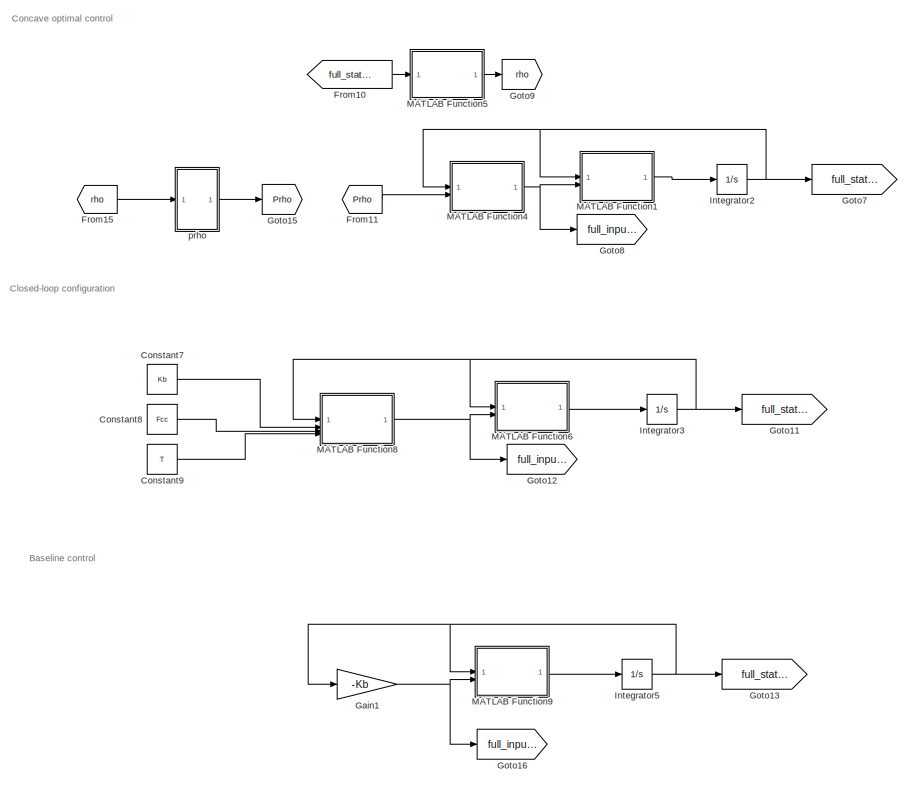
[diagram: root canvas - part 1/4, central region]
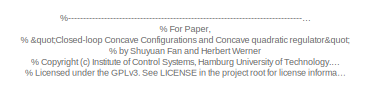
[diagram: root canvas - part 2/4, top left region]
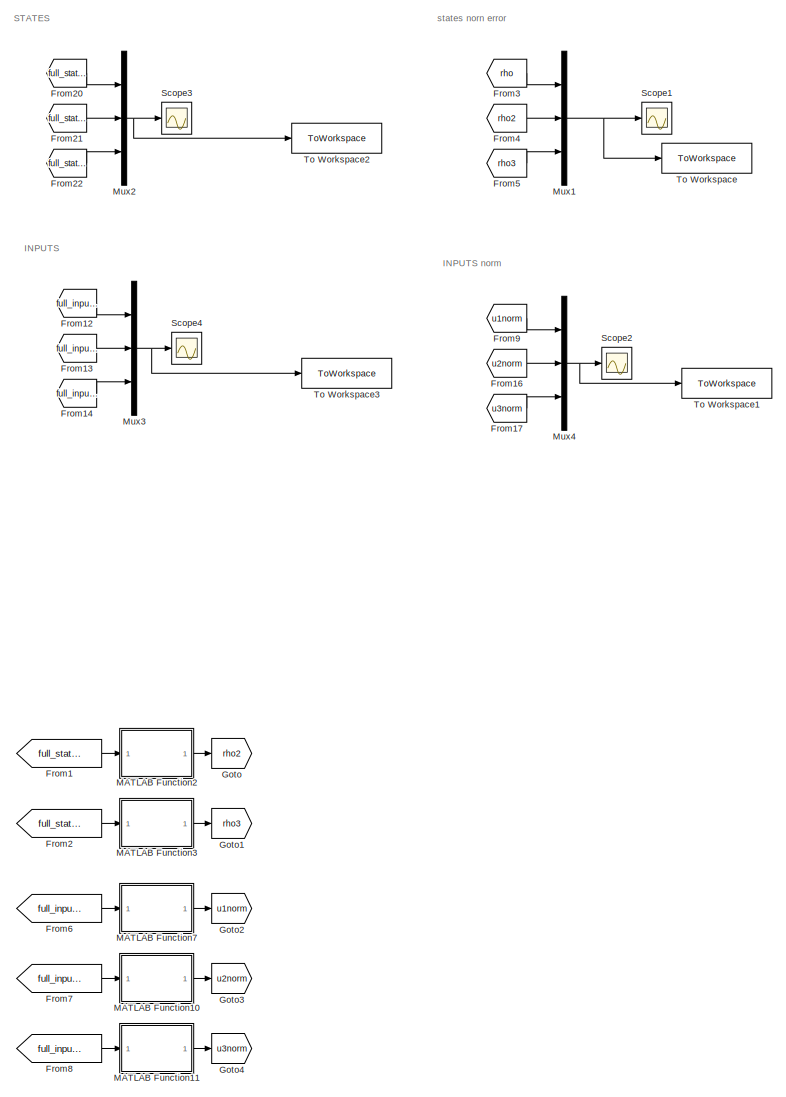
[diagram: root canvas - part 3/4, right side, full height]
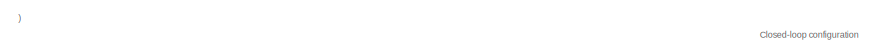
[diagram: root canvas - part 4/4, top left region]
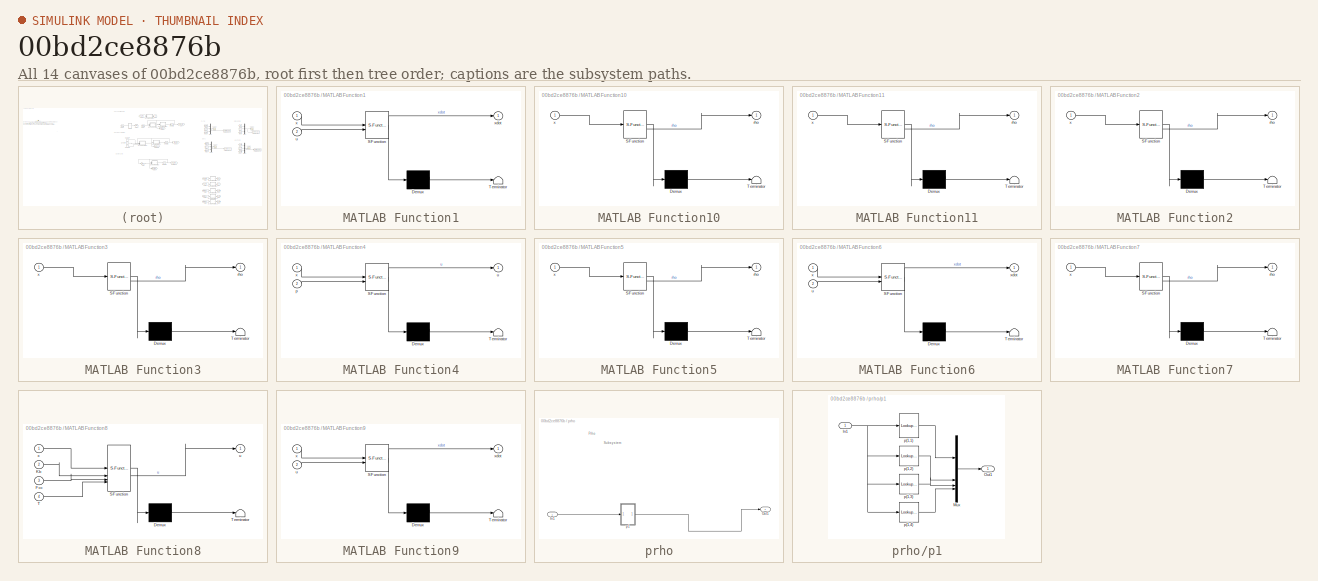
[diagram: thumbnail index - all 14 canvases of the model, root first then tree order]
MODEL slx_00bd2ce8876b
KIND model
CONFIG AbsTol = auto
CONFIG EnableMultiTasking = on
CONFIG FixedStep = 1e-4
CONFIG MaxStep = auto
CONFIG MinStep = auto
CONFIG RelTol = 1e-3
CONFIG SampleTimeConstraint = Unconstrained
CONFIG SolverName = FixedStepAuto
CONFIG StartTime = 0.0
CONFIG StopTime = 8
BLOCK [Constant] Constant7
  Value = Kb
BLOCK [Constant] Constant8
  Value = Fcc
BLOCK [Constant] Constant9
  Value = T
BLOCK [From] From1
  GotoTag = full_state_2
BLOCK [From] From10
  GotoTag = full_state_1
BLOCK [From] From11
  GotoTag = Prho
BLOCK [From] From12
  GotoTag = full_input_1
BLOCK [From] From13
  GotoTag = full_input_2
BLOCK [From] From14
  GotoTag = full_input_3
BLOCK [From] From15
  GotoTag = rho
BLOCK [From] From16
  GotoTag = u2norm
BLOCK [From] From17
  GotoTag = u3norm
BLOCK [From] From2
  GotoTag = full_state_3
BLOCK [From] From20
  GotoTag = full_state_1
BLOCK [From] From21
  GotoTag = full_state_2
BLOCK [From] From22
  GotoTag = full_state_3
BLOCK [From] From3
  GotoTag = rho
BLOCK [From] From4
  GotoTag = rho2
BLOCK [From] From5
  GotoTag = rho3
BLOCK [From] From6
  GotoTag = full_input_1
BLOCK [From] From7
  GotoTag = full_input_2
BLOCK [From] From8
  GotoTag = full_input_3
BLOCK [From] From9
  GotoTag = u1norm
BLOCK [Gain] Gain1
  Gain = -Kb
  Multiplication = Matrix(K*u)
BLOCK [Goto] Goto
  GotoTag = rho2
BLOCK [Goto] Goto1
  GotoTag = rho3
BLOCK [Goto] Goto11
  GotoTag = full_state_2
BLOCK [Goto] Goto12
  GotoTag = full_input_2
BLOCK [Goto] Goto13
  GotoTag = full_state_3
BLOCK [Goto] Goto15
  GotoTag = Prho
BLOCK [Goto] Goto16
  GotoTag = full_input_3
BLOCK [Goto] Goto2
  GotoTag = u1norm
BLOCK [Goto] Goto3
  GotoTag = u2norm
BLOCK [Goto] Goto4
  GotoTag = u3norm
BLOCK [Goto] Goto7
  GotoTag = full_state_1
BLOCK [Goto] Goto8
  GotoTag = full_input_1
BLOCK [Goto] Goto9
  GotoTag = rho
BLOCK [Integrator] Integrator2
  InitialCondition = x0
BLOCK [Integrator] Integrator3
  InitialCondition = x0
BLOCK [Integrator] Integrator5
  InitialCondition = x0
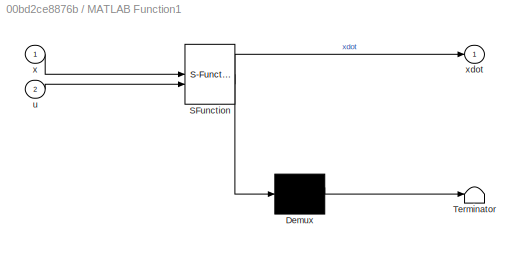
BLOCK [SubSystem] MATLAB Function1
  ErrorFcn = Stateflow.Translate.translate
  LibrarySourceBlock = simulink/User-Defined\nFunctions/MATLAB Function
  PermitHierarchicalResolution = ExplicitOnly
  SFBlockType = MATLAB Function
  TreatAsAtomicUnit = on
BLOCK [Demux] MATLAB Function1/ Demux 
  Outputs = 1
BLOCK [S-Function] MATLAB Function1/ SFunction 
  EnableBusSupport = on
  FunctionName = sf_sfun
  PortCounts = [2 2]
  SFcnIsStateOwnerBlock = off
  SFunctionDeploymentMode = off
  Tag = Stateflow S-Function 1
BLOCK [Terminator] MATLAB Function1/ Terminator 
BLOCK [Inport] MATLAB Function1/u
  Port = 2
BLOCK [Inport] MATLAB Function1/x
BLOCK [Outport] MATLAB Function1/xdot
BLOCK [SubSystem] MATLAB Function10
  ErrorFcn = Stateflow.Translate.translate
  LibrarySourceBlock = simulink/User-Defined\nFunctions/MATLAB Function
  PermitHierarchicalResolution = ExplicitOnly
  SFBlockType = MATLAB Function
  TreatAsAtomicUnit = on
BLOCK [Demux] MATLAB Function10/ Demux 
  Outputs = 1
BLOCK [S-Function] MATLAB Function10/ SFunction 
  EnableBusSupport = on
  FunctionName = sf_sfun
  PortCounts = [1 2]
  SFcnIsStateOwnerBlock = off
  SFunctionDeploymentMode = off
  Tag = Stateflow S-Function 4
BLOCK [Terminator] MATLAB Function10/ Terminator 
BLOCK [Outport] MATLAB Function10/rho
BLOCK [Inport] MATLAB Function10/x
BLOCK [SubSystem] MATLAB Function11
  ErrorFcn = Stateflow.Translate.translate
  LibrarySourceBlock = simulink/User-Defined\nFunctions/MATLAB Function
  PermitHierarchicalResolution = ExplicitOnly
  SFBlockType = MATLAB Function
  TreatAsAtomicUnit = on
BLOCK [Demux] MATLAB Function11/ Demux 
  Outputs = 1
BLOCK [S-Function] MATLAB Function11/ SFunction 
  EnableBusSupport = on
  FunctionName = sf_sfun
  PortCounts = [1 2]
  SFcnIsStateOwnerBlock = off
  SFunctionDeploymentMode = off
  Tag = Stateflow S-Function 8
BLOCK [Terminator] MATLAB Function11/ Terminator 
BLOCK [Outport] MATLAB Function11/rho
BLOCK [Inport] MATLAB Function11/x
BLOCK [SubSystem] MATLAB Function2
  ErrorFcn = Stateflow.Translate.translate
  LibrarySourceBlock = simulink/User-Defined\nFunctions/MATLAB Function
  PermitHierarchicalResolution = ExplicitOnly
  SFBlockType = MATLAB Function
  TreatAsAtomicUnit = on
BLOCK [Demux] MATLAB Function2/ Demux 
  Outputs = 1
BLOCK [S-Function] MATLAB Function2/ SFunction 
  EnableBusSupport = on
  FunctionName = sf_sfun
  PortCounts = [1 2]
  SFcnIsStateOwnerBlock = off
  SFunctionDeploymentMode = off
  Tag = Stateflow S-Function 2
BLOCK [Terminator] MATLAB Function2/ Terminator 
BLOCK [Outport] MATLAB Function2/rho
BLOCK [Inport] MATLAB Function2/x
BLOCK [SubSystem] MATLAB Function3
  ErrorFcn = Stateflow.Translate.translate
  LibrarySourceBlock = simulink/User-Defined\nFunctions/MATLAB Function
  PermitHierarchicalResolution = ExplicitOnly
  SFBlockType = MATLAB Function
  TreatAsAtomicUnit = on
BLOCK [Demux] MATLAB Function3/ Demux 
  Outputs = 1
BLOCK [S-Function] MATLAB Function3/ SFunction 
  EnableBusSupport = on
  FunctionName = sf_sfun
  PortCounts = [1 2]
  SFcnIsStateOwnerBlock = off
  SFunctionDeploymentMode = off
  Tag = Stateflow S-Function 3
BLOCK [Terminator] MATLAB Function3/ Terminator 
BLOCK [Outport] MATLAB Function3/rho
BLOCK [Inport] MATLAB Function3/x
BLOCK [SubSystem] MATLAB Function4
  ErrorFcn = Stateflow.Translate.translate
  LibrarySourceBlock = simulink/User-Defined\nFunctions/MATLAB Function
  PermitHierarchicalResolution = ExplicitOnly
  SFBlockType = MATLAB Function
  TreatAsAtomicUnit = on
BLOCK [Demux] MATLAB Function4/ Demux 
  Outputs = 1
BLOCK [S-Function] MATLAB Function4/ SFunction 
  EnableBusSupport = on
  FunctionName = sf_sfun
  PortCounts = [2 2]
  SFcnIsStateOwnerBlock = off
  SFunctionDeploymentMode = off
  Tag = Stateflow S-Function 6
BLOCK [Terminator] MATLAB Function4/ Terminator 
BLOCK [Inport] MATLAB Function4/p
  Port = 2
BLOCK [Outport] MATLAB Function4/u
BLOCK [Inport] MATLAB Function4/x
BLOCK [SubSystem] MATLAB Function5
  ErrorFcn = Stateflow.Translate.translate
  LibrarySourceBlock = simulink/User-Defined\nFunctions/MATLAB Function
  PermitHierarchicalResolution = ExplicitOnly
  SFBlockType = MATLAB Function
  TreatAsAtomicUnit = on
BLOCK [Demux] MATLAB Function5/ Demux 
  Outputs = 1
BLOCK [S-Function] MATLAB Function5/ SFunction 
  EnableBusSupport = on
  FunctionName = sf_sfun
  PortCounts = [1 2]
  SFcnIsStateOwnerBlock = off
  SFunctionDeploymentMode = off
  Tag = Stateflow S-Function 10
BLOCK [Terminator] MATLAB Function5/ Terminator 
BLOCK [Outport] MATLAB Function5/rho
BLOCK [Inport] MATLAB Function5/x
BLOCK [SubSystem] MATLAB Function6
  ErrorFcn = Stateflow.Translate.translate
  LibrarySourceBlock = simulink/User-Defined\nFunctions/MATLAB Function
  PermitHierarchicalResolution = ExplicitOnly
  SFBlockType = MATLAB Function
  TreatAsAtomicUnit = on
BLOCK [Demux] MATLAB Function6/ Demux 
  Outputs = 1
BLOCK [S-Function] MATLAB Function6/ SFunction 
  EnableBusSupport = on
  FunctionName = sf_sfun
  PortCounts = [2 2]
  SFcnIsStateOwnerBlock = off
  SFunctionDeploymentMode = off
  Tag = Stateflow S-Function 7
BLOCK [Terminator] MATLAB Function6/ Terminator 
BLOCK [Inport] MATLAB Function6/u
  Port = 2
BLOCK [Inport] MATLAB Function6/x
BLOCK [Outport] MATLAB Function6/xdot
BLOCK [SubSystem] MATLAB Function7
  ErrorFcn = Stateflow.Translate.translate
  LibrarySourceBlock = simulink/User-Defined\nFunctions/MATLAB Function
  PermitHierarchicalResolution = ExplicitOnly
  SFBlockType = MATLAB Function
  TreatAsAtomicUnit = on
BLOCK [Demux] MATLAB Function7/ Demux 
  Outputs = 1
BLOCK [S-Function] MATLAB Function7/ SFunction 
  EnableBusSupport = on
  FunctionName = sf_sfun
  PortCounts = [1 2]
  SFcnIsStateOwnerBlock = off
  SFunctionDeploymentMode = off
  Tag = Stateflow S-Function 5
BLOCK [Terminator] MATLAB Function7/ Terminator 
BLOCK [Outport] MATLAB Function7/rho
BLOCK [Inport] MATLAB Function7/x
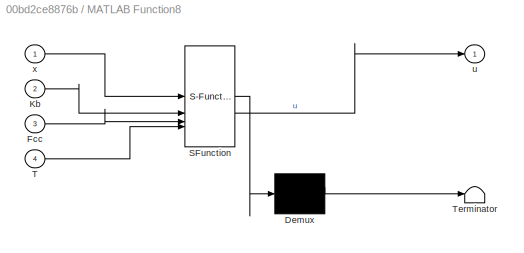
BLOCK [SubSystem] MATLAB Function8
  ErrorFcn = Stateflow.Translate.translate
  LibrarySourceBlock = simulink/User-Defined\nFunctions/MATLAB Function
  PermitHierarchicalResolution = ExplicitOnly
  SFBlockType = MATLAB Function
  TreatAsAtomicUnit = on
BLOCK [Demux] MATLAB Function8/ Demux 
  Outputs = 1
BLOCK [S-Function] MATLAB Function8/ SFunction 
  EnableBusSupport = on
  FunctionName = sf_sfun
  PortCounts = [4 2]
  SFcnIsStateOwnerBlock = off
  SFunctionDeploymentMode = off
  Tag = Stateflow S-Function 12
BLOCK [Terminator] MATLAB Function8/ Terminator 
BLOCK [Inport] MATLAB Function8/Fcc
  Port = 3
BLOCK [Inport] MATLAB Function8/Kb
  Port = 2
BLOCK [Inport] MATLAB Function8/T
  Port = 4
BLOCK [Outport] MATLAB Function8/u
BLOCK [Inport] MATLAB Function8/x
BLOCK [SubSystem] MATLAB Function9
  ErrorFcn = Stateflow.Translate.translate
  LibrarySourceBlock = simulink/User-Defined\nFunctions/MATLAB Function
  PermitHierarchicalResolution = ExplicitOnly
  SFBlockType = MATLAB Function
  TreatAsAtomicUnit = on
BLOCK [Demux] MATLAB Function9/ Demux 
  Outputs = 1
BLOCK [S-Function] MATLAB Function9/ SFunction 
  EnableBusSupport = on
  FunctionName = sf_sfun
  PortCounts = [2 2]
  SFcnIsStateOwnerBlock = off
  SFunctionDeploymentMode = off
  Tag = Stateflow S-Function 11
BLOCK [Terminator] MATLAB Function9/ Terminator 
BLOCK [Inport] MATLAB Function9/u
  Port = 2
BLOCK [Inport] MATLAB Function9/x
BLOCK [Outport] MATLAB Function9/xdot
BLOCK [Mux] Mux1
  DisplayOption = bar
  Inputs = 3
BLOCK [Mux] Mux2
  DisplayOption = bar
  Inputs = 3
BLOCK [Mux] Mux3
  DisplayOption = bar
  Inputs = 3
BLOCK [Mux] Mux4
  DisplayOption = bar
  Inputs = 3
BLOCK [Scope] Scope1
  Floating = off
  NumInputPorts = 1
  ScopeSpecificationString = Simulink.scopes.TimeScopeBlockCfg('CurrentConfiguration', extmgr.ConfigurationSet(extmgr.Configuration('Core','General UI',true),extmgr.Configuration('Core','Source UI',true),extmgr.Configuration('Sources','WiredSimulink',true,'DataLoggingVariableName','ScopeData2'),extmgr.Configuration('Visuals','Time Domain',true,'SerializedDisplays',{struct('MinYLimReal','-0.27951','MaxYLimReal','2.51558','YLab...<+1592ch>
BLOCK [Scope] Scope2
  Floating = off
  NumInputPorts = 1
  ScopeSpecificationString = Simulink.scopes.TimeScopeBlockCfg('CurrentConfiguration', extmgr.ConfigurationSet(extmgr.Configuration('Core','General UI',true),extmgr.Configuration('Core','Source UI',true),extmgr.Configuration('Sources','WiredSimulink',true,'DataLoggingVariableName','ScopeData3'),extmgr.Configuration('Visuals','Time Domain',true,'SerializedDisplays',{struct('MinYLimReal','-0.27951','MaxYLimReal','2.51558','YLab...<+1592ch>
BLOCK [Scope] Scope3
  Floating = off
  NumInputPorts = 1
  ScopeSpecificationString = Simulink.scopes.TimeScopeBlockCfg('CurrentConfiguration', extmgr.ConfigurationSet(extmgr.Configuration('Core','General UI',true),extmgr.Configuration('Core','Source UI',true),extmgr.Configuration('Sources','WiredSimulink',true,'DataLoggingVariableName','ScopeData1'),extmgr.Configuration('Visuals','Time Domain',true,'SerializedDisplays',{struct('MinYLimReal','-1.22596','MaxYLimReal','2.35844','YLab...<+1751ch>
BLOCK [Scope] Scope4
  Floating = off
  NumInputPorts = 1
  ScopeSpecificationString = Simulink.scopes.TimeScopeBlockCfg('CurrentConfiguration', extmgr.ConfigurationSet(extmgr.Configuration('Core','General UI',true),extmgr.Configuration('Core','Source UI',true),extmgr.Configuration('Sources','WiredSimulink',true,'DataLoggingVariableName','ScopeData2'),extmgr.Configuration('Visuals','Time Domain',true,'SerializedDisplays',{struct('MinYLimReal','-2.85265','MaxYLimReal','0.95042','YLab...<+1619ch>
BLOCK [ToWorkspace] To Workspace
  FixptAsFi = on
  MaxDataPoints = inf
  SampleTime = -1
  SaveFormat = Timeseries
  VariableName = statesnorm
BLOCK [ToWorkspace] To Workspace1
  FixptAsFi = on
  MaxDataPoints = inf
  SampleTime = -1
  SaveFormat = Timeseries
  VariableName = inputsnorm
BLOCK [ToWorkspace] To Workspace2
  FixptAsFi = on
  MaxDataPoints = inf
  SampleTime = -1
  SaveFormat = Timeseries
  VariableName = states
BLOCK [ToWorkspace] To Workspace3
  FixptAsFi = on
  MaxDataPoints = inf
  SampleTime = -1
  SaveFormat = Timeseries
  VariableName = inputs
BLOCK [SubSystem] prho
BLOCK [Inport] prho/In1
BLOCK [Outport] prho/Out1
BLOCK [SubSystem] prho/p1
BLOCK [Inport] prho/p1/In1
BLOCK [Mux] prho/p1/Mux
  DisplayOption = bar
BLOCK [Outport] prho/p1/Out1
BLOCK [Lookup_n-D] prho/p1/p(1,1)
  BreakpointsForDimension1 = rho
  InputPortMap = u0
  InternalRulePriority = Speed
  InterpMethod = Linear Lagrange
  NumberOfTableDimensions = 1
  RndMeth = Simplest
  Table = P(:,1)
BLOCK [Lookup_n-D] prho/p1/p(1,2)
  BreakpointsForDimension1 = rho
  InputPortMap = u0
  InternalRulePriority = Speed
  InterpMethod = Linear Lagrange
  NumberOfTableDimensions = 1
  RndMeth = Simplest
  Table = P(:,2)
BLOCK [Lookup_n-D] prho/p1/p(1,3)
  BreakpointsForDimension1 = rho
  InputPortMap = u0
  InternalRulePriority = Speed
  InterpMethod = Linear Lagrange
  NumberOfTableDimensions = 1
  RndMeth = Simplest
  Table = P(:,2)
BLOCK [Lookup_n-D] prho/p1/p(1,4)
  BreakpointsForDimension1 = rho
  InputPortMap = u0
  InternalRulePriority = Speed
  InterpMethod = Linear Lagrange
  NumberOfTableDimensions = 1
  RndMeth = Simplest
  Table = P(:,4)
ANNOTATION (root): %----------------------------------------------------------------------------------------- % For Paper, % "Closed-loop Concave Configurations and Concave quadratic regulator" % by Shuyuan Fan and Herbert Werner % <copyright redacted>
ANNOTATION (root): )
ANNOTATION (root): Baseline control
ANNOTATION (root): Closed-loop configuration
ANNOTATION (root): Concave optimal control
ANNOTATION (root): INPUTS
ANNOTATION (root): INPUTS norm
ANNOTATION (root): STATES
ANNOTATION (root): states norn error
ANNOTATION prho: Prho
ANNOTATION prho: Subsystem
LINE Constant7:1 -> MATLAB Function8:2
LINE Constant8:1 -> MATLAB Function8:3
LINE Constant9:1 -> MATLAB Function8:4
LINE From10:1 -> MATLAB Function5:1
LINE From11:1 -> MATLAB Function4:2
LINE From12:1 -> Mux3:1
LINE From13:1 -> Mux3:2
LINE From14:1 -> Mux3:3
LINE From15:1 -> prho:1
LINE From16:1 -> Mux4:2
LINE From17:1 -> Mux4:3
LINE From1:1 -> MATLAB Function2:1
LINE From20:1 -> Mux2:1
LINE From21:1 -> Mux2:2
LINE From22:1 -> Mux2:3
LINE From2:1 -> MATLAB Function3:1
LINE From3:1 -> Mux1:1
LINE From4:1 -> Mux1:2
LINE From5:1 -> Mux1:3
LINE From6:1 -> MATLAB Function7:1
LINE From7:1 -> MATLAB Function10:1
LINE From8:1 -> MATLAB Function11:1
LINE From9:1 -> Mux4:1
NET Gain1:1 -> Goto16:1, MATLAB Function9:2
NET Integrator2:1 -> Goto7:1, MATLAB Function1:1, MATLAB Function4:1
NET Integrator3:1 -> Goto11:1, MATLAB Function6:1, MATLAB Function8:1
NET Integrator5:1 -> Gain1:1, Goto13:1, MATLAB Function9:1
LINE MATLAB Function10:1 -> Goto3:1
LINE MATLAB Function11:1 -> Goto4:1
LINE MATLAB Function1:1 -> Integrator2:1
LINE MATLAB Function2:1 -> Goto:1
LINE MATLAB Function3:1 -> Goto1:1
NET MATLAB Function4:1 -> Goto8:1, MATLAB Function1:2
LINE MATLAB Function5:1 -> Goto9:1
LINE MATLAB Function6:1 -> Integrator3:1
LINE MATLAB Function7:1 -> Goto2:1
NET MATLAB Function8:1 -> Goto12:1, MATLAB Function6:2
LINE MATLAB Function9:1 -> Integrator5:1
NET Mux1:1 -> Scope1:1, To Workspace:1
NET Mux2:1 -> Scope3:1, To Workspace2:1
NET Mux3:1 -> Scope4:1, To Workspace3:1
NET Mux4:1 -> Scope2:1, To Workspace1:1
LINE prho/In1:1 -> prho/p1:1
NET prho/p1/In1:1 -> prho/p1/p(1,1):1, prho/p1/p(1,2):1, prho/p1/p(1,3):1, prho/p1/p(1,4):1
LINE prho/p1/Mux:1 -> prho/p1/Out1:1
LINE prho/p1/p(1,1):1 -> prho/p1/Mux:1
LINE prho/p1/p(1,2):1 -> prho/p1/Mux:2
LINE prho/p1/p(1,3):1 -> prho/p1/Mux:3
LINE prho/p1/p(1,4):1 -> prho/p1/Mux:4
LINE prho/p1:1 -> prho/Out1:1
LINE prho:1 -> Goto15:1
note: NET lines group one-source signal fan-out (src -> all destinations, sorted); 1:1 wires keep LINE
CHART MATLAB Function1 states=1 transitions=1
  STATE_LABEL 'eML_blk_kernel()'
  STATE_LABEL 'SCRIPT:\nfunction xdot = fcn(x,u)\nA = [-1 1;-1 1];\nB =  [1, 1; 2, 1];\n\nxdot = A*x+B*u;\n\nend'
CHART MATLAB Function2 states=1 transitions=1
  STATE_LABEL 'eML_blk_kernel()'
  STATE_LABEL "SCRIPT:\nfunction rho = fcn(x)\n\nrho = sqrt(x'*x);\n"
CHART MATLAB Function3 states=1 transitions=1
  STATE_LABEL 'eML_blk_kernel()'
  STATE_LABEL "SCRIPT:\nfunction rho = fcn(x)\n\nrho = sqrt(x'*x);\n"
CHART MATLAB Function10 states=1 transitions=1
  STATE_LABEL 'eML_blk_kernel()'
  STATE_LABEL "SCRIPT:\nfunction rho = fcn(x)\n\nrho = sqrt(x'*x);\n"
CHART MATLAB Function7 states=1 transitions=1
  STATE_LABEL 'eML_blk_kernel()'
  STATE_LABEL "SCRIPT:\nfunction rho = fcn(x)\n\nrho = sqrt(x'*x);\n"
CHART MATLAB Function4 states=1 transitions=1
  STATE_LABEL 'eML_blk_kernel()'
  STATE_LABEL "SCRIPT:\nfunction u= fcn(x,p)\nR = diag([1,1]);\n% system matrix\nA = [-1 1;-1 1];\nB = [1, 1; 2,1];\n\np_ = reshape(p,[2,2]);\nP = p_';\nR_inv = inv(R);\nu = -R_inv*B'*P*x;\n"
CHART MATLAB Function6 states=1 transitions=1
  STATE_LABEL 'eML_blk_kernel()'
  STATE_LABEL 'SCRIPT:\nfunction xdot = fcn(x,u)\nA = [-1 1;-1 1];\nB =  [1, 1; 2, 1];\n\nxdot = A*x+B*u;\n\nend'
CHART MATLAB Function11 states=1 transitions=1
  STATE_LABEL 'eML_blk_kernel()'
  STATE_LABEL "SCRIPT:\nfunction rho = fcn(x)\n\nrho = sqrt(x'*x);\n"
CHART MATLAB Function5 states=1 transitions=1
  STATE_LABEL 'eML_blk_kernel()'
  STATE_LABEL "SCRIPT:\nfunction rho = fcn(x)\n\nrho = sqrt(x'*x);\n"
CHART MATLAB Function9 states=1 transitions=1
  STATE_LABEL 'eML_blk_kernel()'
  STATE_LABEL 'SCRIPT:\nfunction xdot = fcn(x,u)\nA = [-1 1;-1 1];\nB =  [1, 1; 2, 1];\n\nxdot = A*x+B*u;\n\nend'
CHART MATLAB Function8 states=1 transitions=1
  STATE_LABEL 'eML_blk_kernel()'
  STATE_LABEL 'SCRIPT:\nfunction u= fcn(x,Kb,Fcc,T)\n\n% system matrix\nA = [-1 1;-1 1];\nB = [1, 1; 2,1];\n\n% baseline controller\n%Kb = reshape(Kb,[2,2]);\nAclb = A-B*Kb;\n\n% transformation matrix\n\n%T = reshape(T,[2,2]);\n\n% xtilde\n\nxtilde = T*x;\n\n%rho\n\nrho1  = abs(xtilde(1));\n\nrho2 = abs(xtilde(2));\n\n%concave factor\n% parameters of concave factor\nk1min = Fcc(1); k1max = Fcc(2); beta1 = Fcc(3); eta1 = Fcc(4);\nk2min = Fc...<+261ch>'
CHART  states=0 transitions=0
CHART  states=0 transitions=0
CHART  states=0 transitions=0
CHART  states=0 transitions=0
CHART  states=0 transitions=0
CHART  states=0 transitions=0
CHART  states=0 transitions=0
CHART  states=0 transitions=0
CHART  states=0 transitions=0
CHART  states=0 transitions=0
CHART  states=0 transitions=0
